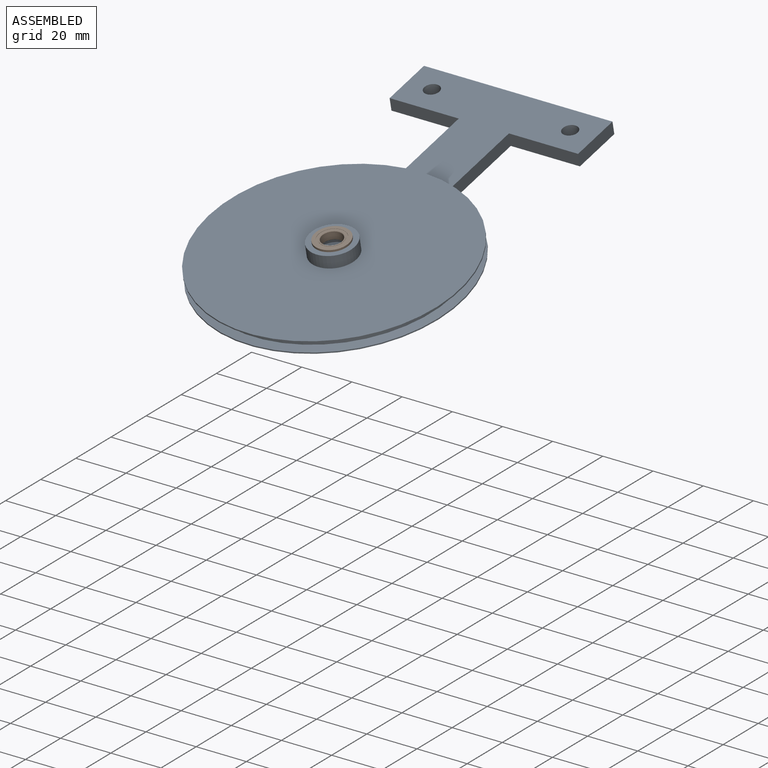
[diagram: assembled view]
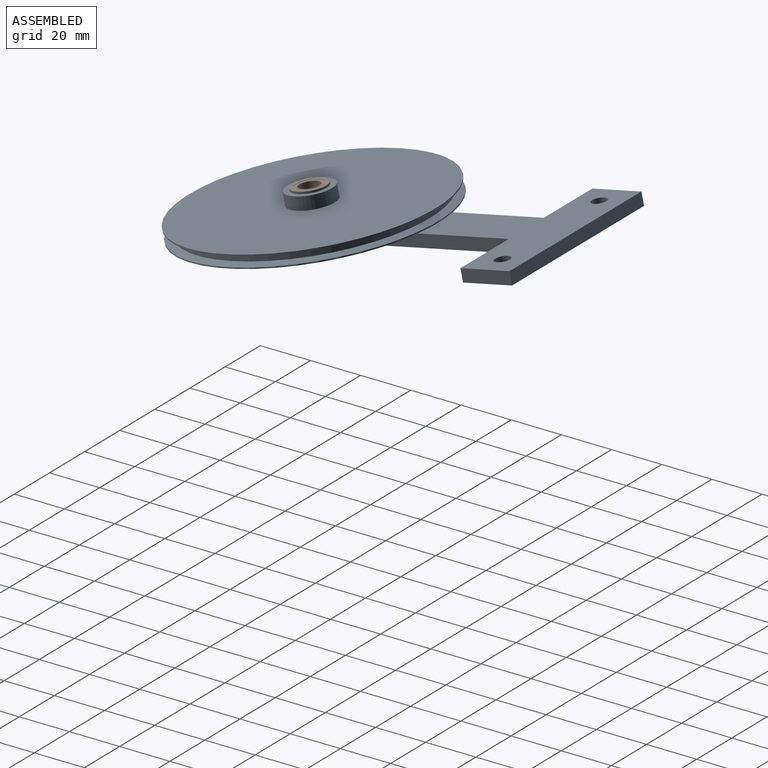
[diagram: assembled view, second angle]
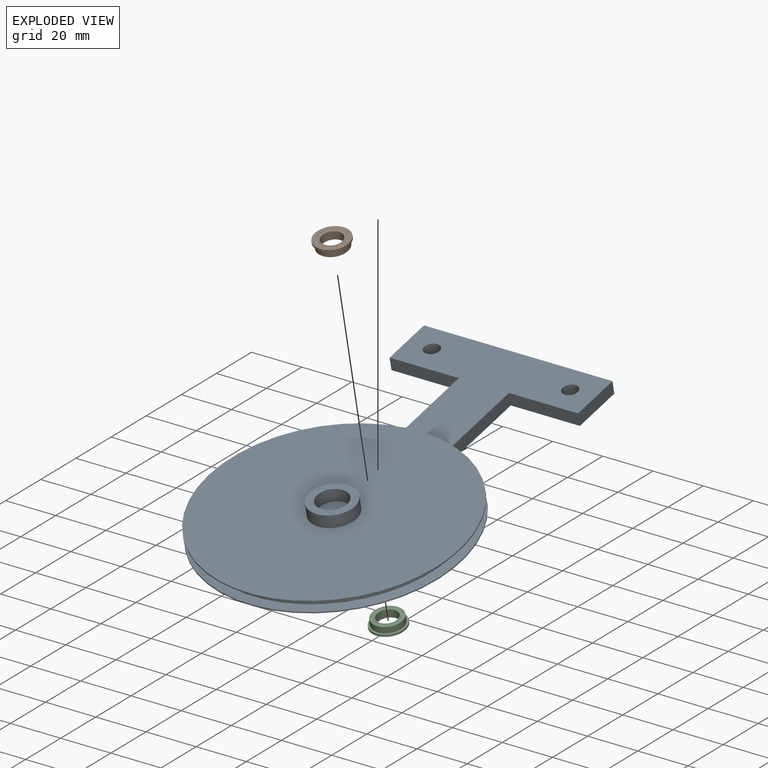
[diagram: exploded view]
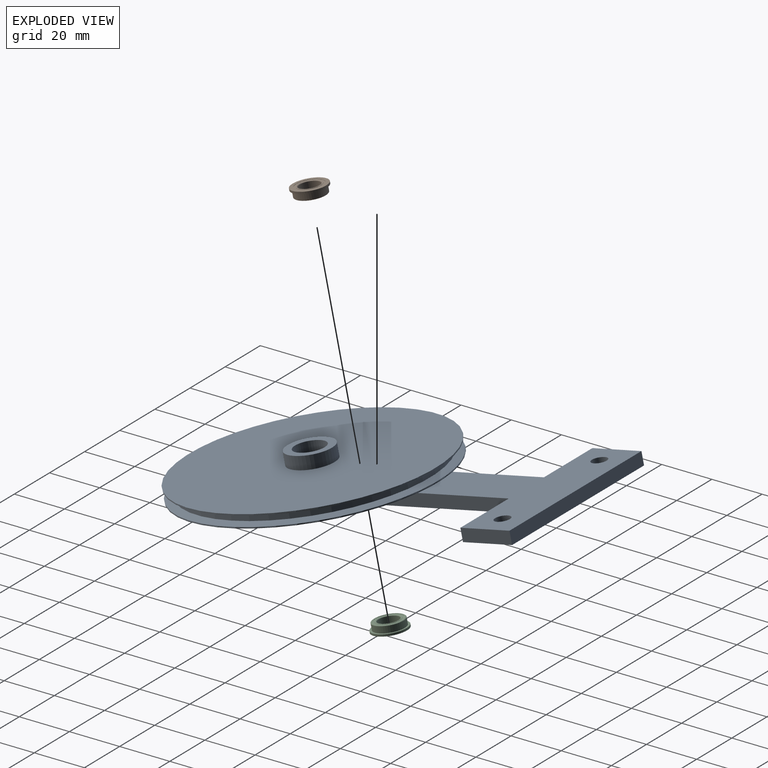
[diagram: exploded view, second angle]
ASSEMBLY  parts=3 mates=2
PART A: 25 faces, bbox 100x156.1x15 mm
  f0: plane 75.13x57.14mm, normal (0,0,1), area 2175.2mm2, adj f2,f4,f5,f6,f7,f8,f9,f10
  f1: cylinder r=6mm len=12mm, axis (0,0,-1), area 188.5mm2, adj f12,f13
  f2: plane 96.13x5mm, normal (-1,0,0), area 480.6mm2, adj f0,f3,f10,f12,f14
  f3: plane 20x5mm, normal (0,-1,0), area 100mm2, adj f2,f4,f12,f14
  f4: plane 96.13x5mm, normal (1,0,0), area 480.6mm2, adj f0,f3,f5,f12,f14
  f5: plane 27.56x5mm, normal (0,-1,0), area 137.8mm2, adj f0,f4,f6,f12
  f6: plane 20x5mm, normal (1,0,0), area 100mm2, adj f0,f5,f7,f12
  f7: plane 75.13x5mm, normal (0,1,0), area 375.6mm2, adj f0,f6,f8,f12
  f8: plane 20x5mm, normal (-1,0,0), area 100mm2, adj f0,f7,f10,f12
  f9: cylinder r=3mm len=6mm, axis (0,0,-1), area 94.2mm2, adj f0,f12
  f10: plane 27.56x5mm, normal (0,-1,0), area 137.8mm2, adj f0,f2,f8,f12
  f11: cylinder r=3mm len=6mm, axis (0,0,-1), area 94.2mm2, adj f0,f12
  f12: plane 116.13x75.13mm, normal (0,0,-1), area 3255.4mm2, adj f1,f2,f3,f4,f5,f6,f7,f8
  f13: plane 12x12mm, normal (0,0,-1), area 113.1mm2, adj f1
  f14: plane 100x98.99mm, normal (0,0,-1), area 6660.7mm2, adj f2,f3,f4,f15
  f15: cylinder r=50mm len=100mm, axis (0,0,-1), area 157.1mm2, adj f0,f14,f16
  f16: cone r=50mm half-angle=71.6deg, axis (0,0,-1), area 963.7mm2, adj f15,f17
  f17: cylinder r=47mm len=94mm, axis (0,0,-1), area 590.6mm2, adj f16,f18
  f18: cone r=47mm half-angle=71.6deg, axis (0,0,1), area 963.7mm2, adj f17,f19
  f19: cylinder r=50mm len=100mm, axis (0,0,-1), area 157.1mm2, adj f18,f20
  f20: plane 100x100mm, normal (0,0,1), area 7599.5mm2, adj f19,f21
  f21: cylinder r=9mm len=18mm, axis (0,0,-1), area 282.7mm2, adj f20,f22
  f22: plane 18x18mm, normal (0,0,1), area 141.4mm2, adj f21,f23
  f23: cylinder r=6mm len=12mm, axis (0,0,-1), area 188.5mm2, adj f22,f24
  f24: plane 12x12mm, normal (0,0,1), area 113.1mm2, adj f23
PART B: 25 faces, bbox 13.6x13.6x3.5 mm
  f0: cylinder r=5.37mm len=10.75mm, axis (0,0,1), area 3mm2, adj f6,f16
  f1: cylinder r=6.8mm len=13.6mm, axis (0,0,-1), area 34.2mm2, adj f5,f7
  f2: cylinder r=5.37mm len=10.75mm, axis (0,0,1), area 3mm2, adj f5,f15
  f3: cylinder r=6mm len=12mm, axis (0,0,1), area 95.2mm2, adj f4,f7
  f4: cone r=6mm half-angle=45deg, axis (0,0,-1), area 9.2mm2, adj f3,f6
  f5: plane 13.6x13.6mm, normal (0,0,-1), area 54.6mm2, adj f1,f2
  f6: plane 11.65x11.65mm, normal (0,0,1), area 15.9mm2, adj f0,f4
  f7: plane 13.6x13.6mm, normal (0,0,1), area 32.2mm2, adj f1,f3
  f8: plane 9.25x9.25mm, normal (0,0,-1), area 12.5mm2, adj f11,f14
  f9: plane 9.25x9.25mm, normal (0,0,1), area 12.5mm2, adj f10,f13
  f10: cylinder r=4.63mm len=9.25mm, axis (0,0,1), area 2.5mm2, adj f9,f16
  f11: cone r=4mm half-angle=45deg, axis (0,0,-1), area 6.4mm2, adj f8,f12
  f12: cylinder r=4mm len=8mm, axis (0,0,1), area 79.2mm2, adj f11,f13
  f13: cone r=4.17mm half-angle=45deg, axis (0,0,1), area 6.4mm2, adj f9,f12
  f14: cylinder r=4.63mm len=9.25mm, axis (0,0,1), area 2.5mm2, adj f8,f15
  f15: plane 10.75x10.75mm, normal (0,0,-1), area 23.5mm2, adj f2,f14
  f16: plane 10.75x10.75mm, normal (0,0,1), area 23.5mm2, adj f0,f10
  f17: plane 10.75x10.75mm, normal (0,0,-1), area 23.5mm2, adj f18,f22
  f18: cylinder r=4.63mm len=9.25mm, axis (0,0,1), area 2.5mm2, adj f17,f20
  f19: plane 10.75x10.75mm, normal (0,0,1), area 23.5mm2, adj f21,f24
  f20: torus R=5mm, axis (0,0,1), area 52.4mm2, adj f18,f21
  f21: cylinder r=4.63mm len=9.25mm, axis (0,0,1), area 2.5mm2, adj f19,f20
  f22: cylinder r=5.37mm len=10.75mm, axis (0,0,1), area 2.9mm2, adj f17,f23
  f23: torus R=5mm, axis (0,0,1), area 69.3mm2, adj f22,f24
  f24: cylinder r=5.37mm len=10.75mm, axis (0,0,1), area 2.9mm2, adj f19,f23
PART C: same geometry as B
PLACE A rot(axis=(1,0,0),12deg) t=(-37.35,99.64,-234.91)mm
PLACE B rot(axis=(-1,0,0),168deg) t=(-37.35,-266.14,-268.65)mm
PLACE C rot(axis=(1,0,0),12deg) t=(-37.35,-263.42,-281.46)mm
MATE fastened B.f0 <-> A.f1  axis (0,0.21,-0.98) through (-37.35,-266.34,-267.72)mm
MATE fastened C.f0 <-> A.f1  axis (0,-0.21,0.98) through (-37.35,-263.22,-282.39)mm
